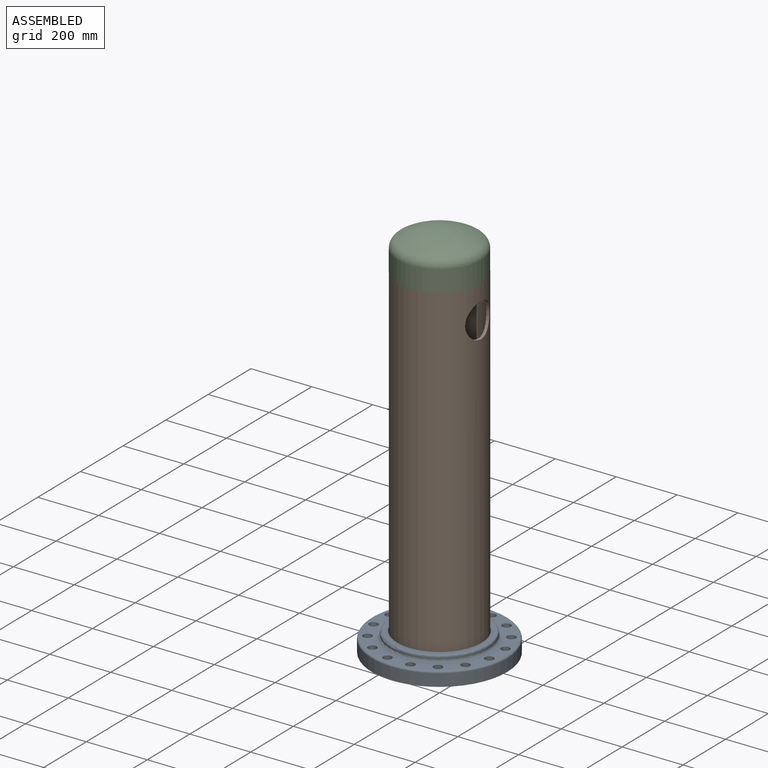
[diagram: assembled view]
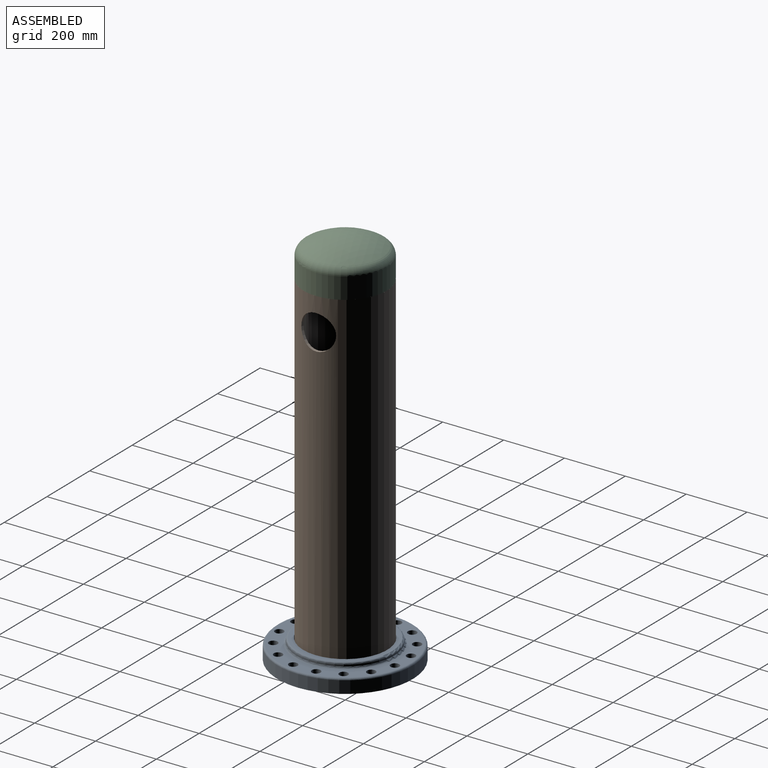
[diagram: assembled view, second angle]
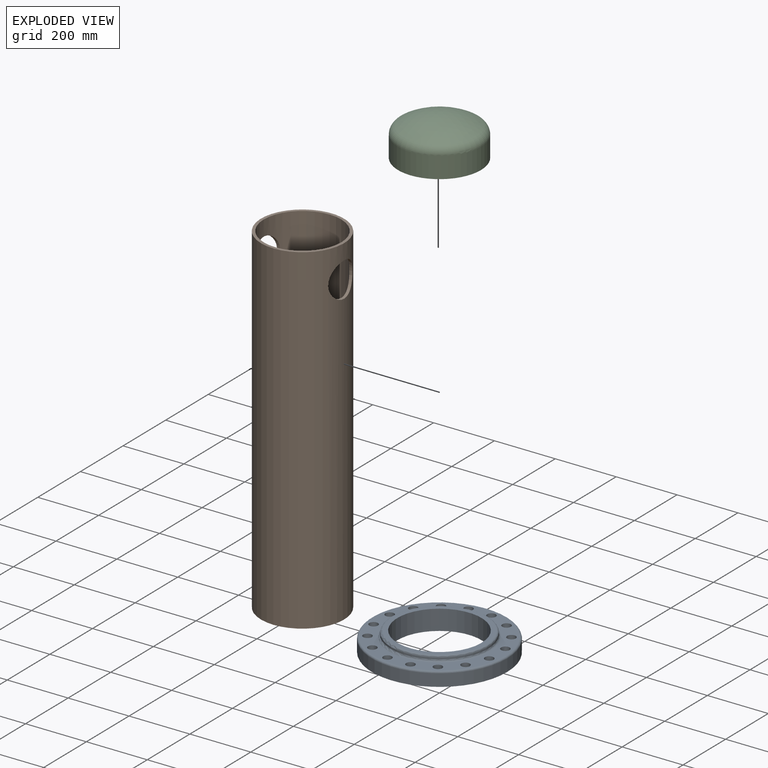
[diagram: exploded view]
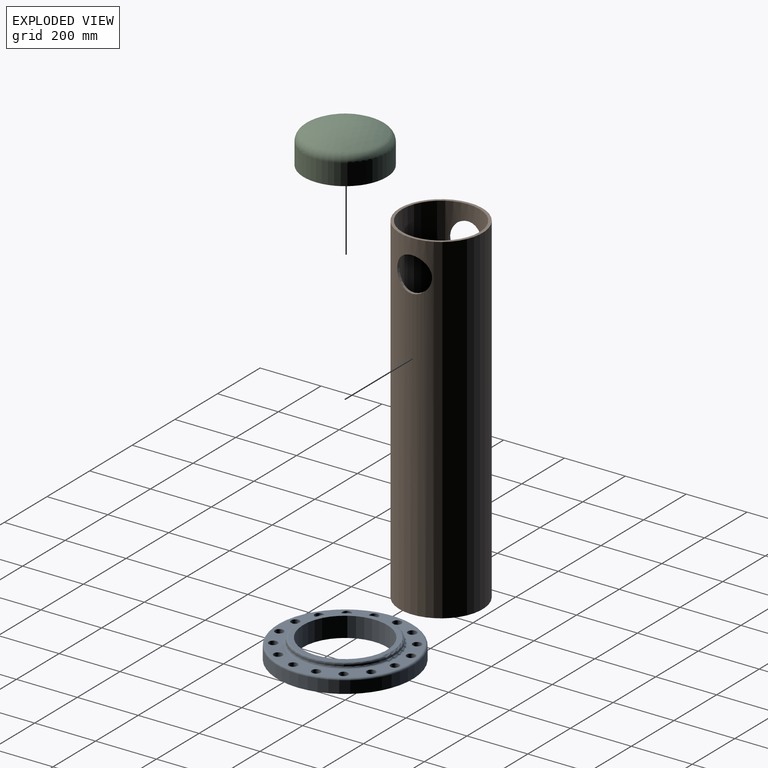
[diagram: exploded view, second angle]
ASSEMBLY  parts=3 mates=2
PART A: 27 faces, bbox 66x480.6x480.6 mm
  f0: plane 323.8x323.8mm, normal (-1,0,0), area 22344.2mm2, adj f1,f10
  f1: cylinder r=161.9mm len=323.8mm, axis (1,0,0), area 1627.6mm2, adj f0,f2
  f2: plane 444x444mm, normal (-1,0,0), area 62277mm2, adj f1,f3,f11,f12,f13,f14,f15,f16
  f3: cylinder r=222mm len=444mm, axis (1,0,0), area 55812.4mm2, adj f2,f4
  f4: torus R=215.81mm, axis (1,0,0), area 13419.4mm2, adj f3,f5
  f5: plane 431.63x431.63mm, normal (1,0,0), area 49347.8mm2, adj f4,f6,f11,f12,f13,f14,f15,f16
  f6: torus R=166.19mm, axis (1,0,0), area 9907.9mm2, adj f5,f7
  f7: cylinder r=160mm len=320mm, axis (1,0,0), area 5856.3mm2, adj f6,f8
  f8: torus R=153.81mm, axis (1,0,0), area 9633.3mm2, adj f7,f9
  f9: plane 307.63x307.63mm, normal (1,0,0), area 14322.8mm2, adj f8,f10
  f10: cylinder r=138.2mm len=276.4mm, axis (1,0,0), area 57310.2mm2, adj f0,f9
  f11: cylinder r=14.25mm len=46.2mm, axis (1,0,0), area 4136.5mm2, adj f2,f5
  f12: cylinder r=14.25mm len=46.2mm, axis (1,0,0), area 4136.5mm2, adj f2,f5
  f13: cylinder r=14.25mm len=46.2mm, axis (1,0,0), area 4136.5mm2, adj f2,f5
  f14: cylinder r=14.25mm len=46.2mm, axis (1,0,0), area 4136.5mm2, adj f2,f5
  f15: cylinder r=14.25mm len=46.2mm, axis (1,0,0), area 4136.5mm2, adj f2,f5
  f16: cylinder r=14.25mm len=46.2mm, axis (1,0,0), area 4136.5mm2, adj f2,f5
  f17: cylinder r=14.25mm len=46.2mm, axis (1,0,0), area 4136.5mm2, adj f2,f5
  f18: cylinder r=14.25mm len=46.2mm, axis (1,0,0), area 4136.5mm2, adj f2,f5
  f19: cylinder r=14.25mm len=46.2mm, axis (1,0,0), area 4136.5mm2, adj f2,f5
  f20: cylinder r=14.25mm len=46.2mm, axis (1,0,0), area 4136.5mm2, adj f2,f5
  f21: cylinder r=14.25mm len=46.2mm, axis (1,0,0), area 4136.5mm2, adj f2,f5
  f22: cylinder r=14.25mm len=46.2mm, axis (1,0,0), area 4136.5mm2, adj f2,f5
  f23: cylinder r=14.25mm len=46.2mm, axis (1,0,0), area 4136.5mm2, adj f2,f5
  f24: cylinder r=14.25mm len=46.2mm, axis (1,0,0), area 4136.5mm2, adj f2,f5
  f25: cylinder r=14.25mm len=46.2mm, axis (1,0,0), area 4136.5mm2, adj f2,f5
  f26: cylinder r=14.25mm len=46.2mm, axis (1,0,0), area 4136.5mm2, adj f2,f5
PART B: 6 faces, bbox 273.1x1117.6x273.1 mm
  f0: cylinder r=127.25mm len=1117.6mm, axis (0,-1,0), area 872536.1mm2, adj f2,f3,f4,f5
  f1: cylinder r=136.53mm len=1117.6mm, axis (0,-1,0), area 937697.4mm2, adj f2,f3,f4,f5
  f2: plane 273.05x273.05mm, normal (0,1,0), area 7682.7mm2, adj f0,f1
  f3: plane 273.05x273.05mm, normal (0,-1,0), area 7682.7mm2, adj f0,f1
  f4: cylinder r=57.15mm len=114.3mm, axis (-1,0,0), area 3505.5mm2, adj f0,f1
  f5: cylinder r=57.15mm len=114.3mm, axis (-1,0,0), area 3504.6mm2, adj f0,f1
PART C: 8 faces, bbox 295.5x295.5x127 mm
  f0: plane 273x273mm, normal (0,0,-1), area 7680.5mm2, adj f1,f7
  f1: cone r=0mm half-angle=17deg, axis (0,0,-1), area 11218.8mm2, adj f0,f2
  f2: cylinder r=123.06mm len=246.12mm, axis (0,0,1), area 42936.1mm2, adj f1,f3
  f3: torus R=107.02mm, axis (0,0,1), area 12764mm2, adj f2,f4
  f4: sphere r=232.26mm, area 44428.7mm2, adj f3
  f5: sphere r=245.7mm, area 49719.9mm2, adj f6
  f6: torus R=107.02mm, axis (0,0,1), area 25622.3mm2, adj f5,f7
  f7: cylinder r=136.5mm len=273mm, axis (0,0,1), area 59328.1mm2, adj f0,f6
PLACE A rot(axis=(0.71,-0.07,0.71),172.1deg) t=(0,0,-1131.89)mm
PLACE B rot(axis=(-1,0,0),90deg) t=(0,0,0)mm
PLACE C at identity
MATE cylindrical C.f1 <-> B.f1  axis (0,0,-1) through (0,0,0)mm
MATE cylindrical A.f1 <-> B.f0  axis (0,0,1) through (0,0,-1131.89)mm
